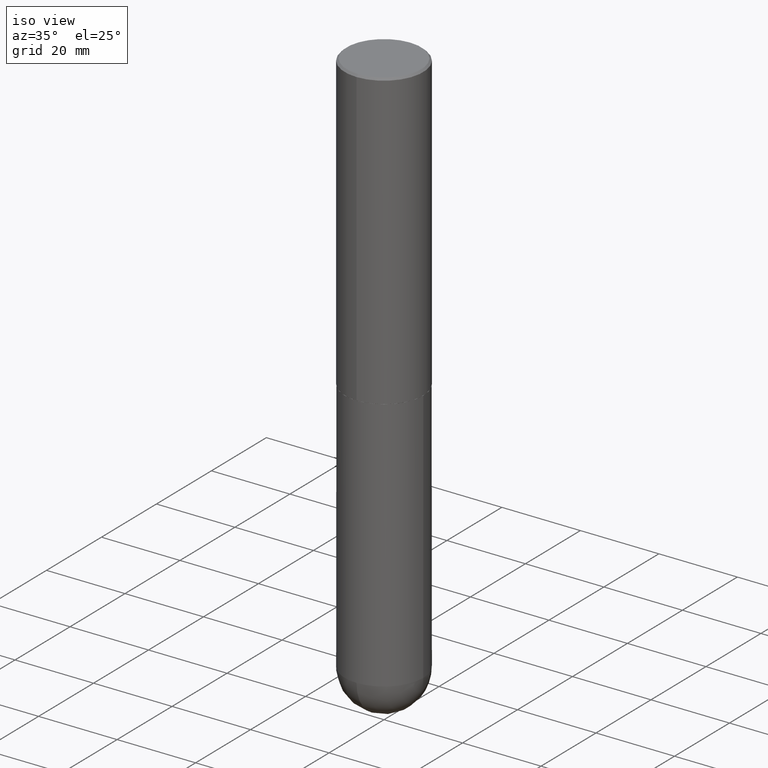
[diagram: clean part render]
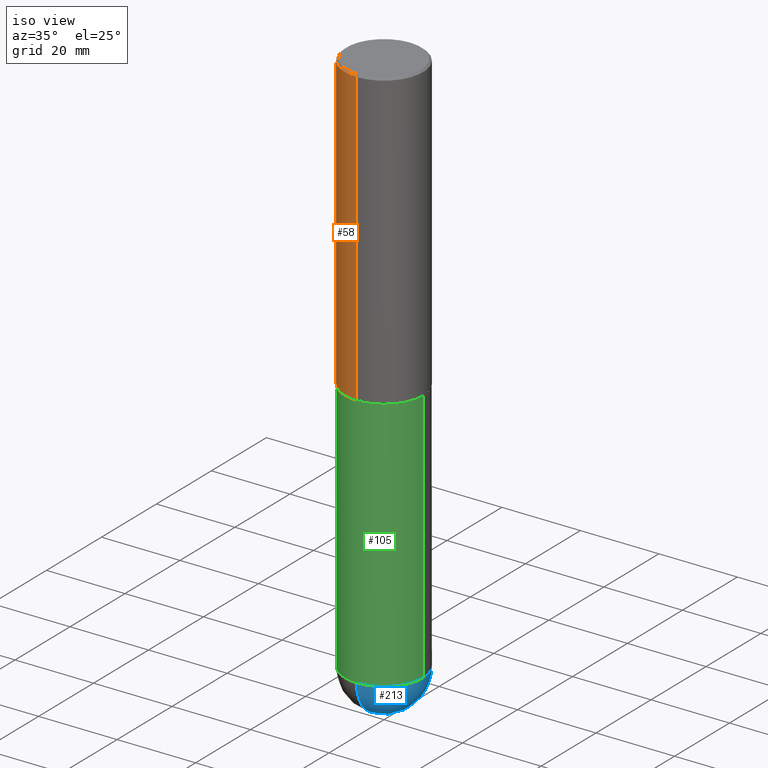
[diagram: same view with three faces highlighted in distinct colors, each labeled with its STEP entity id]
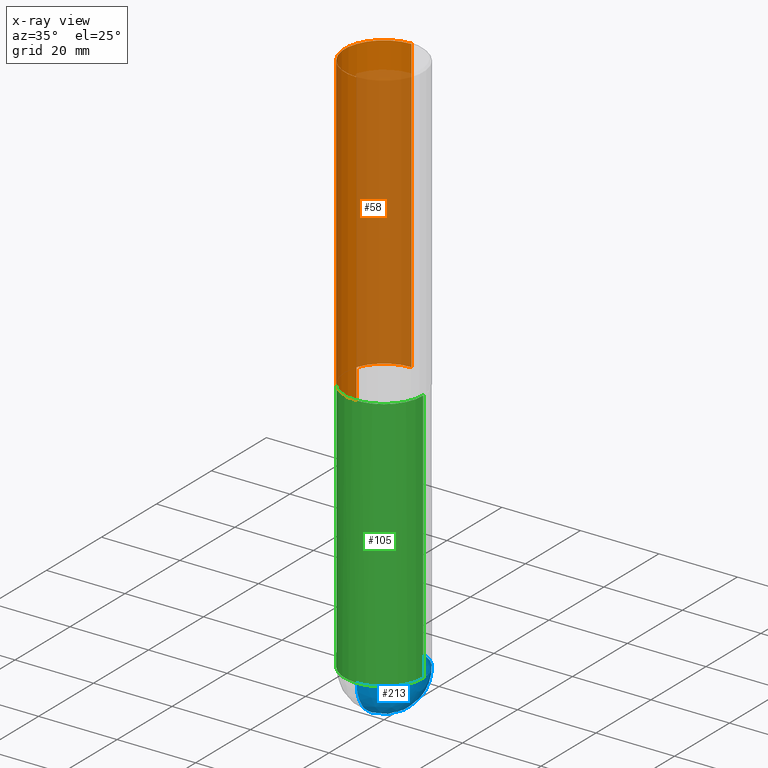
[diagram: x-ray of the same camera — body ghosted, the three highlighted faces saturated]
A machine part, iso view with three faces highlighted in distinct colors.
The next image is the same camera in x-ray (body ghosted, the three faces saturated) — at least one of them is partly hidden behind the body in this view.
Their STEP definitions:

[orange] entity #58 — the highlighted cylindrical surface (partial cylindrical patch) has radius 10 mm, axis along (-0, 0, 1).
#8 = ORIENTED_EDGE ( 'NONE', *, *, #174, .T. ) ;
#12 = CARTESIAN_POINT ( 'NONE',  ( 2.797406750687515181E-15, 0.3937000000000001609, -1.374461349052444348E-15 ) ) ;
#18 = VERTEX_POINT ( 'NONE', #84 ) ;
#43 = CARTESIAN_POINT ( 'NONE',  ( 7.218996284668997343E-29, -1.030479442214401424E-14, -2.951700000000000212 ) ) ;
#47 = CARTESIAN_POINT ( 'NONE',  ( -2.749192406205012614E-15, -0.3937000000000105970, -2.951699999999998436 ) ) ;
#50 = EDGE_CURVE ( 'NONE', #18, #64, #402, .T. ) ;
#54 = VERTEX_POINT ( 'NONE', #47 ) ;
#58 = ADVANCED_FACE ( 'NONE', ( #137 ), #300, .T. ) ;
#64 = VERTEX_POINT ( 'NONE', #102 ) ;
#74 = EDGE_CURVE ( 'NONE', #18, #54, #362, .T. ) ;
#84 = CARTESIAN_POINT ( 'NONE',  ( 2.797406750687551863E-15, 0.3936999999999900024, -2.951700000000001545 ) ) ;
#102 = CARTESIAN_POINT ( 'NONE',  ( 2.749192406205083217E-15, 0.3936999999999999389, -0.02000000000000146452 ) ) ;
#112 = ORIENTED_EDGE ( 'NONE', *, *, #290, .F. ) ;
#137 = FACE_OUTER_BOUND ( 'NONE', #162, .T. ) ;
#155 = AXIS2_PLACEMENT_3D ( 'NONE', #43, #233, #298 ) ;
#162 = EDGE_LOOP ( 'NONE', ( #183, #295, #8, #112 ) ) ;
#163 = DIRECTION ( 'NONE',  ( -2.445707993586407058E-29, 3.491138808870824878E-15, 1.000000000000000000 ) ) ;
#165 = DIRECTION ( 'NONE',  ( -6.982962677686265922E-15, -1.000000000000000000, 3.491138808870824878E-15 ) ) ;
#174 = EDGE_CURVE ( 'NONE', #54, #259, #211, .T. ) ;
#176 = CARTESIAN_POINT ( 'NONE',  ( 4.891415987172836711E-31, -6.982277617741682099E-17, -0.02000000000000009062 ) ) ;
#177 = AXIS2_PLACEMENT_3D ( 'NONE', #176, #163, #296 ) ;
#183 = ORIENTED_EDGE ( 'NONE', *, *, #50, .F. ) ;
#211 = LINE ( 'NONE', #329, #243 ) ;
#233 = DIRECTION ( 'NONE',  ( -2.445707993586407058E-29, 3.491138808870824878E-15, 1.000000000000000000 ) ) ;
#243 = VECTOR ( 'NONE', #361, 39.37007874015748143 ) ;
#259 = VERTEX_POINT ( 'NONE', #343 ) ;
#264 = DIRECTION ( 'NONE',  ( -2.445707993586407058E-29, 3.491138808870824878E-15, 1.000000000000000000 ) ) ;
#290 = EDGE_CURVE ( 'NONE', #64, #259, #369, .T. ) ;
#295 = ORIENTED_EDGE ( 'NONE', *, *, #74, .T. ) ;
#296 = DIRECTION ( 'NONE',  ( -6.982962677686265133E-15, -1.000000000000000000, 3.491137977679279424E-15 ) ) ;
#298 = DIRECTION ( 'NONE',  ( -6.982962677686265922E-15, -1.000000000000000000, 4.163344669033672479E-15 ) ) ;
#300 = CYLINDRICAL_SURFACE ( 'NONE', #346, 0.3937000000000001609 ) ;
#329 = CARTESIAN_POINT ( 'NONE',  ( -2.749192406205084005E-15, -0.3937000000000001609, 1.374461349052444348E-15 ) ) ;
#334 = VECTOR ( 'NONE', #399, 39.37007874015748143 ) ;
#343 = CARTESIAN_POINT ( 'NONE',  ( -2.700978061722651252E-15, -0.3937000000000001054, -0.01999999999999871672 ) ) ;
#346 = AXIS2_PLACEMENT_3D ( 'NONE', #367, #264, #165 ) ;
#361 = DIRECTION ( 'NONE',  ( -2.445707993586407338E-29, 3.491138808870824484E-15, 1.000000000000000000 ) ) ;
#362 = CIRCLE ( 'NONE', #155, 0.3937000000000002720 ) ;
#367 = CARTESIAN_POINT ( 'NONE',  ( 0.000000000000000000, 0.000000000000000000, 0.000000000000000000 ) ) ;
#369 = CIRCLE ( 'NONE', #177, 0.3937000000000000499 ) ;
#399 = DIRECTION ( 'NONE',  ( -2.445707993586407338E-29, 3.491138808870824484E-15, 1.000000000000000000 ) ) ;
#402 = LINE ( 'NONE', #12, #334 ) ;

[blue] entity #213 — the highlighted spherical surface has radius 10 mm.
#1 = DIRECTION ( 'NONE',  ( 1.000000000000000000, -6.982962677686266711E-15, 0.000000000000000000 ) ) ;
#6 = VERTEX_POINT ( 'NONE', #89 ) ;
#10 = AXIS2_PLACEMENT_3D ( 'NONE', #119, #248, #353 ) ;
#24 = VERTEX_POINT ( 'NONE', #210 ) ;
#25 = DIRECTION ( 'NONE',  ( -2.445468806185136597E-29, 3.491481338843145583E-15, 1.000000000000000000 ) ) ;
#36 = CIRCLE ( 'NONE', #10, 0.3937000000000001054 ) ;
#49 = CIRCLE ( 'NONE', #265, 0.3937000000000001054 ) ;
#71 = CIRCLE ( 'NONE', #310, 0.3937000000000001054 ) ;
#79 = CARTESIAN_POINT ( 'NONE',  ( 1.314781518801735134E-28, -1.971852921157570065E-14, -5.511800000000000033 ) ) ;
#89 = CARTESIAN_POINT ( 'NONE',  ( 2.749192406205216928E-15, 0.3936999999999805655, -5.511800000000000921 ) ) ;
#106 = DIRECTION ( 'NONE',  ( -1.000000000000000000, 7.105427357601001070E-15, -4.926315508542082329E-29 ) ) ;
#119 = CARTESIAN_POINT ( 'NONE',  ( 1.347893496593123646E-28, -1.924434684343564878E-14, -5.511800000000000033 ) ) ;
#122 = SPHERICAL_SURFACE ( 'NONE', #297, 0.3937000000000001054 ) ;
#124 = ORIENTED_EDGE ( 'NONE', *, *, #204, .F. ) ;
#127 = EDGE_LOOP ( 'NONE', ( #220, #313, #387, #124 ) ) ;
#136 = CARTESIAN_POINT ( 'NONE',  ( 0.3937000000000001054, -1.752601430252398275E-14, -5.511800000000000033 ) ) ;
#172 = CARTESIAN_POINT ( 'NONE',  ( 1.412743020541493694E-28, -2.106901824243703318E-14, -5.905499999999999972 ) ) ;
#195 = EDGE_CURVE ( 'NONE', #293, #6, #71, .T. ) ;
#201 = DIRECTION ( 'NONE',  ( 6.982962677686265133E-15, 1.000000000000000000, 0.000000000000000000 ) ) ;
#204 = EDGE_CURVE ( 'NONE', #24, #293, #36, .T. ) ;
#210 = CARTESIAN_POINT ( 'NONE',  ( -2.797406750687381075E-15, -0.3937000000000196454, -5.511799999999999145 ) ) ;
#213 = ADVANCED_FACE ( 'NONE', ( #283 ), #122, .T. ) ;
#216 = DIRECTION ( 'NONE',  ( -1.000000000000000000, 6.982962677686265922E-15, -4.883557194083112340E-29 ) ) ;
#220 = ORIENTED_EDGE ( 'NONE', *, *, #379, .F. ) ;
#244 = CIRCLE ( 'NONE', #401, 0.3937000000000001054 ) ;
#248 = DIRECTION ( 'NONE',  ( -2.445468806185136597E-29, 3.491481338843145583E-15, 1.000000000000000000 ) ) ;
#250 = CARTESIAN_POINT ( 'NONE',  ( 1.314781518801735134E-28, -1.971852921157570065E-14, -5.511800000000000033 ) ) ;
#263 = DIRECTION ( 'NONE',  ( 6.982962677686265922E-15, 1.000000000000000000, -2.775563112689116301E-15 ) ) ;
#265 = AXIS2_PLACEMENT_3D ( 'NONE', #79, #407, #201 ) ;
#283 = FACE_OUTER_BOUND ( 'NONE', #127, .T. ) ;
#293 = VERTEX_POINT ( 'NONE', #136 ) ;
#297 = AXIS2_PLACEMENT_3D ( 'NONE', #250, #216, #263 ) ;
#302 = DIRECTION ( 'NONE',  ( -7.105427357601001070E-15, -1.000000000000000000, 0.000000000000000000 ) ) ;
#309 = EDGE_CURVE ( 'NONE', #363, #6, #49, .T. ) ;
#310 = AXIS2_PLACEMENT_3D ( 'NONE', #311, #25, #1 ) ;
#311 = CARTESIAN_POINT ( 'NONE',  ( 1.347893496593123646E-28, -1.924434684343564878E-14, -5.511800000000000033 ) ) ;
#313 = ORIENTED_EDGE ( 'NONE', *, *, #309, .T. ) ;
#353 = DIRECTION ( 'NONE',  ( 1.000000000000000000, -6.982962677686266711E-15, 0.000000000000000000 ) ) ;
#363 = VERTEX_POINT ( 'NONE', #172 ) ;
#379 = EDGE_CURVE ( 'NONE', #363, #24, #244, .T. ) ;
#387 = ORIENTED_EDGE ( 'NONE', *, *, #195, .F. ) ;
#401 = AXIS2_PLACEMENT_3D ( 'NONE', #403, #106, #302 ) ;
#403 = CARTESIAN_POINT ( 'NONE',  ( 1.314781518801735134E-28, -1.971852921157570065E-14, -5.511800000000000033 ) ) ;
#407 = DIRECTION ( 'NONE',  ( 1.000000000000000000, -6.982962677686265922E-15, 4.883557194083112340E-29 ) ) ;

[green] entity #105 — the highlighted cylindrical surface (partial cylindrical patch) has radius 10 mm, axis along (-0, 0, 1).
#3 = ORIENTED_EDGE ( 'NONE', *, *, #133, .F. ) ;
#9 = CARTESIAN_POINT ( 'NONE',  ( 0.3937000000000001054, -2.749192406205084005E-15, 1.919750796630860452E-29 ) ) ;
#10 = AXIS2_PLACEMENT_3D ( 'NONE', #119, #248, #353 ) ;
#15 = CARTESIAN_POINT ( 'NONE',  ( -0.3937000000000001054, 2.797406750687515181E-15, -1.936584745033357016E-29 ) ) ;
#19 = AXIS2_PLACEMENT_3D ( 'NONE', #316, #358, #281 ) ;
#22 = CARTESIAN_POINT ( 'NONE',  ( 7.220735744022852519E-29, -1.030929694920215502E-14, -2.952700000000000102 ) ) ;
#23 = VECTOR ( 'NONE', #104, 39.37007874015748143 ) ;
#24 = VERTEX_POINT ( 'NONE', #210 ) ;
#36 = CIRCLE ( 'NONE', #10, 0.3937000000000001054 ) ;
#37 = EDGE_CURVE ( 'NONE', #293, #214, #70, .T. ) ;
#38 = ORIENTED_EDGE ( 'NONE', *, *, #37, .T. ) ;
#42 = FACE_OUTER_BOUND ( 'NONE', #386, .T. ) ;
#45 = LINE ( 'NONE', #15, #23 ) ;
#62 = CIRCLE ( 'NONE', #389, 0.3937000000000000499 ) ;
#69 = DIRECTION ( 'NONE',  ( -2.445468806185136597E-29, 3.491481338843145583E-15, 1.000000000000000000 ) ) ;
#70 = LINE ( 'NONE', #9, #377 ) ;
#94 = EDGE_CURVE ( 'NONE', #181, #118, #45, .T. ) ;
#95 = CARTESIAN_POINT ( 'NONE',  ( -0.3937000000000001054, -1.197941514563138553E-14, -5.511800000000000033 ) ) ;
#99 = CYLINDRICAL_SURFACE ( 'NONE', #145, 0.3937000000000001054 ) ;
#104 = DIRECTION ( 'NONE',  ( -2.445468806185136877E-29, 3.491481338843145188E-15, 1.000000000000000000 ) ) ;
#105 = ADVANCED_FACE ( 'NONE', ( #42 ), #99, .T. ) ;
#110 = CARTESIAN_POINT ( 'NONE',  ( -0.3937000000000000499, -1.197941514563138553E-14, -2.952700000000000102 ) ) ;
#118 = VERTEX_POINT ( 'NONE', #110 ) ;
#119 = CARTESIAN_POINT ( 'NONE',  ( 1.347893496593123646E-28, -1.924434684343564878E-14, -5.511800000000000033 ) ) ;
#133 = EDGE_CURVE ( 'NONE', #118, #214, #62, .T. ) ;
#136 = CARTESIAN_POINT ( 'NONE',  ( 0.3937000000000001054, -1.752601430252398275E-14, -5.511800000000000033 ) ) ;
#138 = EDGE_CURVE ( 'NONE', #181, #24, #279, .T. ) ;
#145 = AXIS2_PLACEMENT_3D ( 'NONE', #366, #69, #170 ) ;
#153 = ORIENTED_EDGE ( 'NONE', *, *, #204, .T. ) ;
#170 = DIRECTION ( 'NONE',  ( 1.000000000000000000, -6.982962677686266711E-15, 4.876176775795935793E-29 ) ) ;
#181 = VERTEX_POINT ( 'NONE', #95 ) ;
#204 = EDGE_CURVE ( 'NONE', #24, #293, #36, .T. ) ;
#210 = CARTESIAN_POINT ( 'NONE',  ( -2.797406750687381075E-15, -0.3937000000000196454, -5.511799999999999145 ) ) ;
#214 = VERTEX_POINT ( 'NONE', #258 ) ;
#229 = DIRECTION ( 'NONE',  ( -2.445468806185136877E-29, 3.491481338843145188E-15, 1.000000000000000000 ) ) ;
#230 = ORIENTED_EDGE ( 'NONE', *, *, #94, .F. ) ;
#248 = DIRECTION ( 'NONE',  ( -2.445468806185136597E-29, 3.491481338843145583E-15, 1.000000000000000000 ) ) ;
#258 = CARTESIAN_POINT ( 'NONE',  ( 0.3937000000000000499, -1.305848935540723823E-14, -2.952700000000000102 ) ) ;
#279 = CIRCLE ( 'NONE', #19, 0.3937000000000001054 ) ;
#281 = DIRECTION ( 'NONE',  ( 1.000000000000000000, -6.982962677686266711E-15, 0.000000000000000000 ) ) ;
#293 = VERTEX_POINT ( 'NONE', #136 ) ;
#304 = DIRECTION ( 'NONE',  ( 1.000000000000000000, -6.982962677686267499E-15, 0.000000000000000000 ) ) ;
#316 = CARTESIAN_POINT ( 'NONE',  ( 1.347893496593123646E-28, -1.924434684343564878E-14, -5.511800000000000033 ) ) ;
#342 = DIRECTION ( 'NONE',  ( -2.445468806185136597E-29, 3.491481338843145583E-15, 1.000000000000000000 ) ) ;
#353 = DIRECTION ( 'NONE',  ( 1.000000000000000000, -6.982962677686266711E-15, 0.000000000000000000 ) ) ;
#358 = DIRECTION ( 'NONE',  ( -2.445468806185136597E-29, 3.491481338843145583E-15, 1.000000000000000000 ) ) ;
#366 = CARTESIAN_POINT ( 'NONE',  ( 0.000000000000000000, 0.000000000000000000, 0.000000000000000000 ) ) ;
#377 = VECTOR ( 'NONE', #229, 39.37007874015748143 ) ;
#383 = ORIENTED_EDGE ( 'NONE', *, *, #138, .T. ) ;
#386 = EDGE_LOOP ( 'NONE', ( #230, #383, #153, #38, #3 ) ) ;
#389 = AXIS2_PLACEMENT_3D ( 'NONE', #22, #342, #304 ) ;